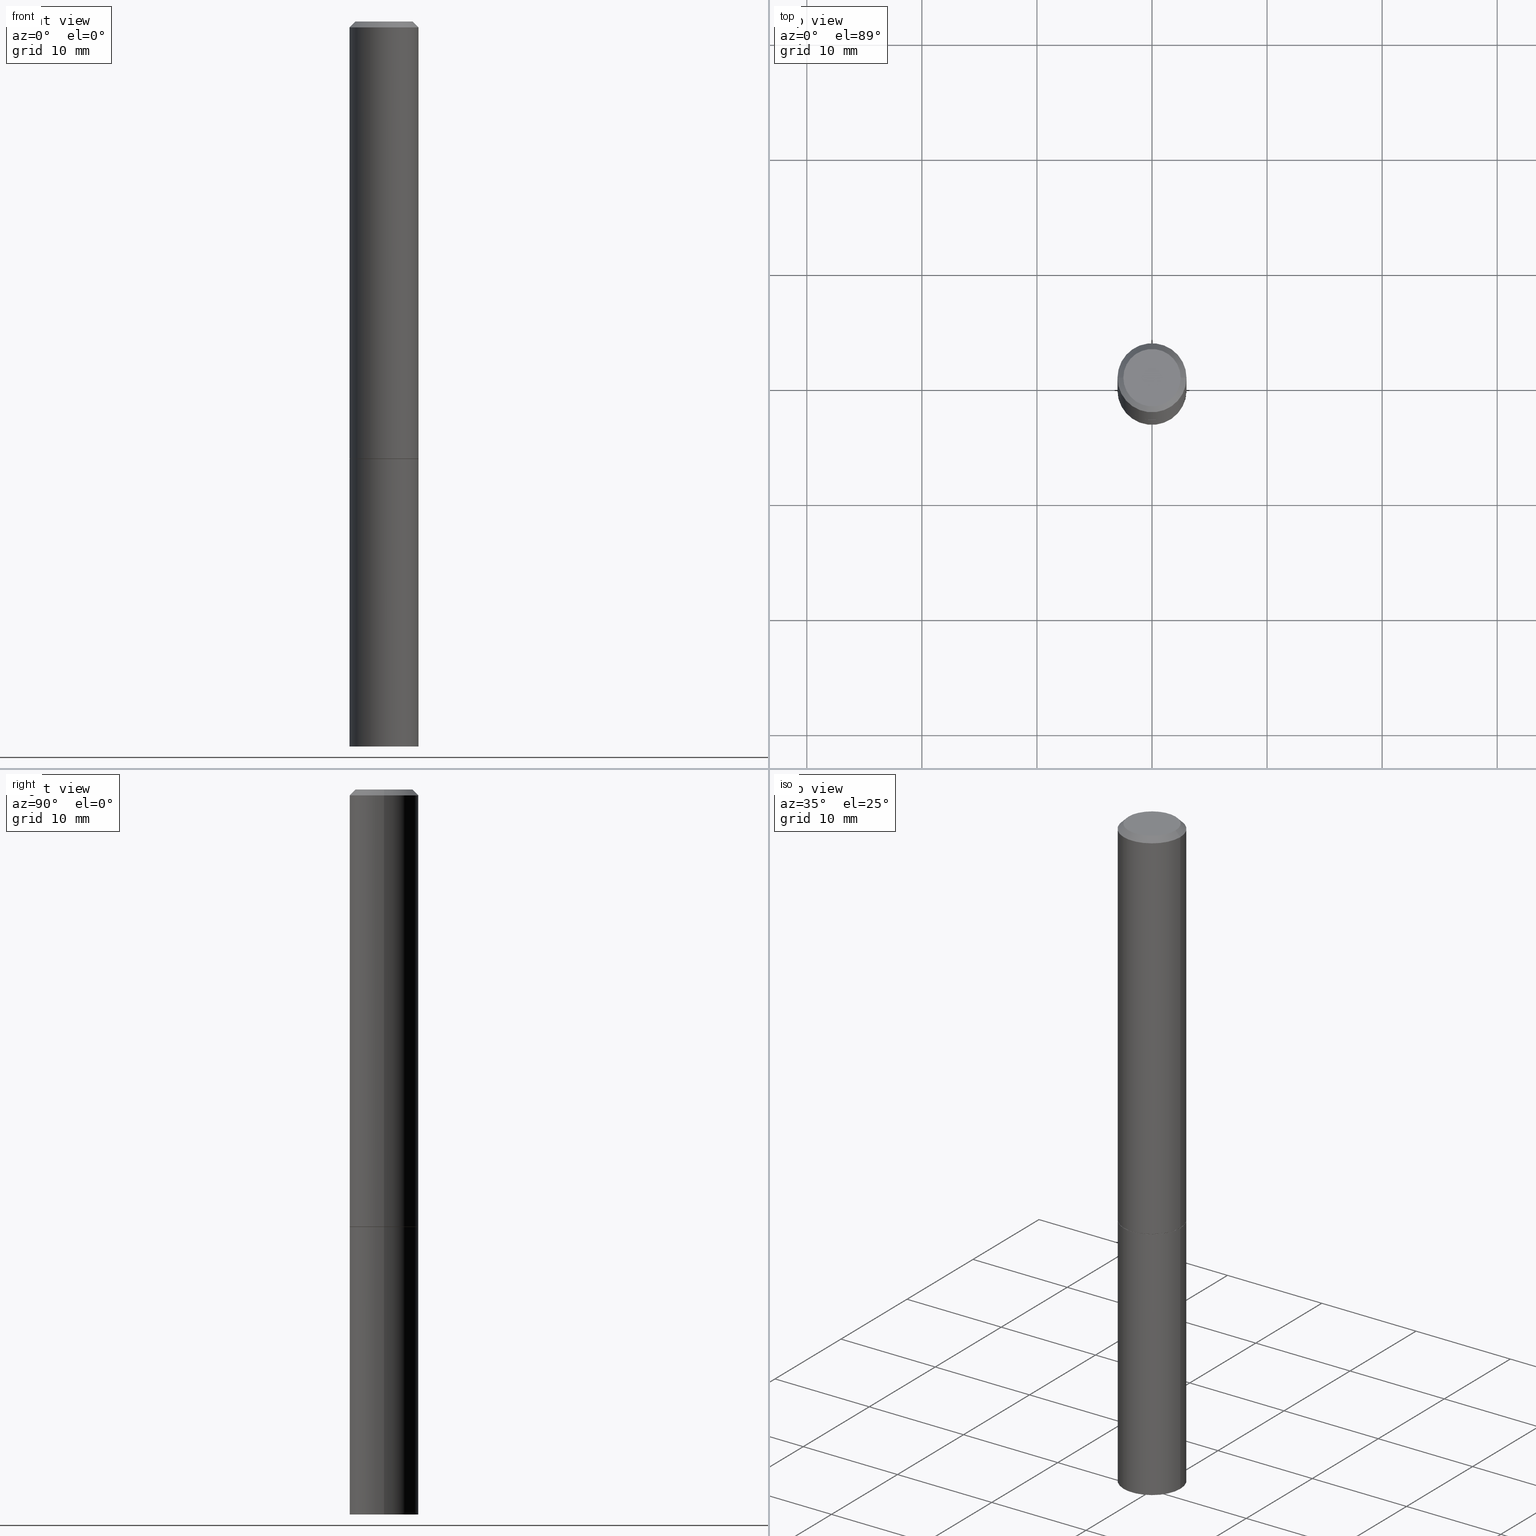
[diagram: canonical four-view strip — front | top / right | iso, engineering-drawing reading convention]
A machine part, canonical four-view strip (front | top / right | iso — engineering-drawing reading convention). The complete STEP part file that produces these views, byte-faithful:
ISO-10303-21;
HEADER;
FILE_DESCRIPTION (( 'STEP AP203' ),
    '1' );
FILE_NAME ('82967.STEP',
    '2024-02-29T19:24:01',
    ( '' ),
    ( '' ),
    'SwSTEP 2.0',
    'SolidWorks 2023',
    '' );
FILE_SCHEMA (( 'CONFIG_CONTROL_DESIGN' ));
ENDSEC;

DATA;
#1 = CALENDAR_DATE ( 2024, 29, 2 ) ;
#2 = ORIENTED_EDGE ( 'NONE', *, *, #77, .F. ) ;
#3 = FACE_OUTER_BOUND ( 'NONE', #235, .T. ) ;
#4 = CC_DESIGN_PERSON_AND_ORGANIZATION_ASSIGNMENT ( #25, #146, ( #346 ) ) ;
#5 = CALENDAR_DATE ( 2024, 29, 2 ) ;
#6 = ORIENTED_EDGE ( 'NONE', *, *, #145, .T. ) ;
#7 = ORIENTED_EDGE ( 'NONE', *, *, #317, .F. ) ;
#8 = CONICAL_SURFACE ( 'NONE', #55, 0.1170999999999999958, 0.7853981633972775267 ) ;
#9 = AXIS2_PLACEMENT_3D ( 'NONE', #68, #363, #136 ) ;
#10 = APPROVAL_PERSON_ORGANIZATION ( #80, #44, #160 ) ;
#11 = DIRECTION ( 'NONE',  ( 0.7071067811864267805, -2.468850131080992517E-15, 0.7071067811866682540 ) ) ;
#12 = ADVANCED_FACE ( 'NONE', ( #182 ), #293, .T. ) ;
#13 = FACE_OUTER_BOUND ( 'NONE', #58, .T. ) ;
#14 = EDGE_CURVE ( 'NONE', #151, #89, #218, .T. ) ;
#15 = CLOSED_SHELL ( 'NONE', ( #333, #193, #74, #171, #325, #62, #232, #253 ) ) ;
#16 = CIRCLE ( 'NONE', #330, 0.1180999999999999966 ) ;
#17 = ORIENTED_EDGE ( 'NONE', *, *, #153, .F. ) ;
#18 = COORDINATED_UNIVERSAL_TIME_OFFSET ( 5, 0, .BEHIND. ) ;
#19 = DIRECTION ( 'NONE',  ( -2.445468806185136597E-29, 3.491481338843145583E-15, 1.000000000000000000 ) ) ;
#20 = LOCAL_TIME ( 14, 24, 1.000000000000000000, #18 ) ;
#21 = CARTESIAN_POINT ( 'NONE',  ( 4.890937612370281041E-31, -6.982962677686302702E-17, -0.02000000000000003511 ) ) ;
#22 = CARTESIAN_POINT ( 'NONE',  ( -0.1180999999999999966, 8.391509709326782957E-16, -5.809262341591043784E-30 ) ) ;
#23 = ADVANCED_FACE ( 'NONE', ( #13 ), #354, .T. ) ;
#24 = VECTOR ( 'NONE', #322, 39.37007874015748143 ) ;
#25 = PERSON_AND_ORGANIZATION ( #123, #313 ) ;
#26 = ORIENTED_EDGE ( 'NONE', *, *, #183, .T. ) ;
#27 = ORIENTED_EDGE ( 'NONE', *, *, #311, .T. ) ;
#28 = CIRCLE ( 'NONE', #117, 0.1180999999999998301 ) ;
#29 = AXIS2_PLACEMENT_3D ( 'NONE', #284, #289, #236 ) ;
#30 = ORIENTED_EDGE ( 'NONE', *, *, #245, .T. ) ;
#31 = ORIENTED_EDGE ( 'NONE', *, *, #120, .F. ) ;
#32 = AXIS2_PLACEMENT_3D ( 'NONE', #132, #241, #268 ) ;
#33 = CARTESIAN_POINT ( 'NONE',  ( -0.1170999999999999958, -4.385912084986047346E-15, -1.496000000000000663 ) ) ;
#34 = CC_DESIGN_DATE_AND_TIME_ASSIGNMENT ( #225, #341, ( #118 ) ) ;
#35 = ORIENTED_EDGE ( 'NONE', *, *, #145, .F. ) ;
#36 = COORDINATED_UNIVERSAL_TIME_OFFSET ( 5, 0, .BEHIND. ) ;
#37 = FACE_OUTER_BOUND ( 'NONE', #221, .T. ) ;
#38 = CARTESIAN_POINT ( 'NONE',  ( 8.246878922348086105E-16, 0.1180999999999913369, -2.480300000000001059 ) ) ;
#39 = CONICAL_SURFACE ( 'NONE', #255, 0.1180999999999998301, 0.7853981633974472798 ) ;
#40 = CC_DESIGN_APPROVAL ( #128, ( #346 ) ) ;
#41 = MECHANICAL_CONTEXT ( 'NONE', #250, 'mechanical' ) ;
#42 = DIRECTION ( 'NONE',  ( -2.445468806185136597E-29, 3.491481338843145583E-15, 1.000000000000000000 ) ) ;
#43 =( LENGTH_UNIT ( ) NAMED_UNIT ( * ) SI_UNIT ( $, .METRE. ) );
#44 = APPROVAL ( #357, 'UNSPECIFIED' ) ;
#45 = DIRECTION ( 'NONE',  ( 2.438088387897960049E-29, -3.491481338843145188E-15, -1.000000000000000000 ) ) ;
#46 = APPLICATION_CONTEXT ( 'configuration controlled 3d designs of mechanical parts and assemblies' ) ;
#47 = VECTOR ( 'NONE', #168, 39.37007874015748143 ) ;
#48 = AXIS2_PLACEMENT_3D ( 'NONE', #308, #197, #179 ) ;
#49 = PERSON_AND_ORGANIZATION ( #123, #313 ) ;
#50 = ORIENTED_EDGE ( 'NONE', *, *, #14, .F. ) ;
#51 = EDGE_CURVE ( 'NONE', #331, #142, #60, .T. ) ;
#52 = PERSON_AND_ORGANIZATION ( #123, #313 ) ;
#53 = VERTEX_POINT ( 'NONE', #93 ) ;
#54 = DIRECTION ( 'NONE',  ( -2.445468806185136877E-29, 3.491481338843145188E-15, 1.000000000000000000 ) ) ;
#55 = AXIS2_PLACEMENT_3D ( 'NONE', #261, #19, #130 ) ;
#56 = ORIENTED_EDGE ( 'NONE', *, *, #120, .T. ) ;
#57 = CC_DESIGN_PERSON_AND_ORGANIZATION_ASSIGNMENT ( #342, #141, ( #118 ) ) ;
#58 = EDGE_LOOP ( 'NONE', ( #343, #155, #31, #349 ) ) ;
#59 = CARTESIAN_POINT ( 'NONE',  ( 6.065496279980994755E-29, -8.659921164732655335E-15, -2.480300000000000171 ) ) ;
#60 = CIRCLE ( 'NONE', #358, 0.1180999999999998301 ) ;
#61 = CARTESIAN_POINT ( 'NONE',  ( 0.000000000000000000, 0.000000000000000000, 0.000000000000000000 ) ) ;
#62 = ADVANCED_FACE ( 'NONE', ( #163 ), #8, .T. ) ;
#63 = ORIENTED_EDGE ( 'NONE', *, *, #360, .F. ) ;
#64 = ORIENTED_EDGE ( 'NONE', *, *, #305, .T. ) ;
#65 = LINE ( 'NONE', #206, #24 ) ;
#66 = DIRECTION ( 'NONE',  ( 1.000000000000000000, -6.982962677686266711E-15, 0.000000000000000000 ) ) ;
#67 = AXIS2_PLACEMENT_3D ( 'NONE', #335, #72, #189 ) ;
#68 = CARTESIAN_POINT ( 'NONE',  ( 0.000000000000000000, 0.000000000000000000, 0.000000000000000000 ) ) ;
#69 = ORIENTED_EDGE ( 'NONE', *, *, #286, .F. ) ;
#70 = ADVANCED_FACE ( 'NONE', ( #237 ), #231, .F. ) ;
#71 = DATE_AND_TIME ( #98, #20 ) ;
#72 = DIRECTION ( 'NONE',  ( -2.445468806185136597E-29, 3.491481338843145583E-15, 1.000000000000000000 ) ) ;
#73 = CARTESIAN_POINT ( 'NONE',  ( 3.658421334052965846E-29, -5.223256082909347726E-15, -1.496000000000000663 ) ) ;
#74 = ADVANCED_FACE ( 'NONE', ( #76 ), #184, .T. ) ;
#75 = DIRECTION ( 'NONE',  ( 0.000000000000000000, 0.000000000000000000, 1.000000000000000000 ) ) ;
#76 = FACE_OUTER_BOUND ( 'NONE', #201, .T. ) ;
#77 = EDGE_CURVE ( 'NONE', #53, #319, #190, .T. ) ;
#78 = ORIENTED_EDGE ( 'NONE', *, *, #366, .F. ) ;
#79 = VECTOR ( 'NONE', #11, 39.37007874015748143 ) ;
#80 = PERSON_AND_ORGANIZATION ( #123, #313 ) ;
#81 = EDGE_CURVE ( 'NONE', #205, #287, #239, .T. ) ;
#82 = FACE_OUTER_BOUND ( 'NONE', #106, .T. ) ;
#83 = AXIS2_PLACEMENT_3D ( 'NONE', #156, #124, #91 ) ;
#84 = ORIENTED_EDGE ( 'NONE', *, *, #51, .T. ) ;
#85 = DIRECTION ( 'NONE',  ( -0.7071067811864267805, 7.493145998869918709E-15, 0.7071067811866682540 ) ) ;
#86 = DIRECTION ( 'NONE',  ( -2.445468806185136877E-29, 3.491481338843145188E-15, 1.000000000000000000 ) ) ;
#87 = CC_DESIGN_DATE_AND_TIME_ASSIGNMENT ( #274, #309, ( #95 ) ) ;
#88 = DIRECTION ( 'NONE',  ( 1.000000000000000000, -6.982962677686265133E-15, 0.000000000000000000 ) ) ;
#89 = VERTEX_POINT ( 'NONE', #217 ) ;
#90 = CARTESIAN_POINT ( 'NONE',  ( -0.1170999999999999958, -4.391210539334270537E-15, -1.496000000000000663 ) ) ;
#91 = DIRECTION ( 'NONE',  ( 1.000000000000000000, -6.982962677686265922E-15, 4.876176775795935793E-29 ) ) ;
#92 = CALENDAR_DATE ( 2024, 29, 2 ) ;
#93 = CARTESIAN_POINT ( 'NONE',  ( -0.1180999999999999966, -6.102437652888322939E-15, -2.480300000000000171 ) ) ;
#94 = PERSON_AND_ORGANIZATION ( #123, #313 ) ;
#95 = PRODUCT_DEFINITION ( 'UNKNOWN', '', #346, #196 ) ;
#96 = EDGE_LOOP ( 'NONE', ( #63, #326, #180, #113 ) ) ;
#97 = VECTOR ( 'NONE', #302, 39.37007874015748143 ) ;
#98 = CALENDAR_DATE ( 2024, 29, 2 ) ;
#99 = DIRECTION ( 'NONE',  ( -1.000000000000000000, 6.982962677686266711E-15, 0.000000000000000000 ) ) ;
#100 = DIRECTION ( 'NONE',  ( 1.000000000000000000, -6.982962677686266711E-15, 4.876176775795935793E-29 ) ) ;
#101 = APPLICATION_PROTOCOL_DEFINITION ( 'international standard', 'config_control_design', 1994, #250 ) ;
#102 = LINE ( 'NONE', #303, #47 ) ;
#103 = AXIS2_PLACEMENT_3D ( 'NONE', #125, #164, #258 ) ;
#104 = CIRCLE ( 'NONE', #108, 0.1170999999999999958 ) ;
#105 = APPROVAL_STATUS ( 'not_yet_approved' ) ;
#106 = EDGE_LOOP ( 'NONE', ( #122, #209, #199, #78 ) ) ;
#107 = VECTOR ( 'NONE', #54, 39.37007874015748143 ) ;
#108 = AXIS2_PLACEMENT_3D ( 'NONE', #318, #243, #220 ) ;
#109 = FACE_OUTER_BOUND ( 'NONE', #256, .T. ) ;
#110 = ORIENTED_EDGE ( 'NONE', *, *, #298, .F. ) ;
#111 = CYLINDRICAL_SURFACE ( 'NONE', #207, 0.1180999999999999966 ) ;
#112 = PERSON_AND_ORGANIZATION ( #123, #313 ) ;
#113 = ORIENTED_EDGE ( 'NONE', *, *, #135, .F. ) ;
#114 = CARTESIAN_POINT ( 'NONE',  ( 4.890937612370281041E-31, -6.982962677686302702E-17, -0.02000000000000003511 ) ) ;
#115 = ORIENTED_EDGE ( 'NONE', *, *, #263, .F. ) ;
#116 = CIRCLE ( 'NONE', #285, 0.1180999999999999966 ) ;
#117 = AXIS2_PLACEMENT_3D ( 'NONE', #21, #170, #301 ) ;
#118 = SECURITY_CLASSIFICATION ( '', '', #365 ) ;
#119 = CARTESIAN_POINT ( 'NONE',  ( 0.1170999999999999958, -6.040961012466409185E-15, -1.496000000000000663 ) ) ;
#120 = EDGE_CURVE ( 'NONE', #306, #323, #212, .T. ) ;
#121 = FACE_OUTER_BOUND ( 'NONE', #214, .T. ) ;
#122 = ORIENTED_EDGE ( 'NONE', *, *, #263, .T. ) ;
#123 = PERSON ( 'UNSPECIFIED', 'UNSPECIFIED', 'UNSPECIFIED', ('UNSPECIFIED'), ('UNSPECIFIED'), ('UNSPECIFIED') ) ;
#124 = DIRECTION ( 'NONE',  ( -2.438088387897960049E-29, 3.491481338843145188E-15, 1.000000000000000000 ) ) ;
#125 = CARTESIAN_POINT ( 'NONE',  ( 3.655975865246779683E-29, -5.219764601570503930E-15, -1.495000000000000329 ) ) ;
#126 = DIRECTION ( 'NONE',  ( -2.445468806185136597E-29, 3.491481338843145583E-15, 1.000000000000000000 ) ) ;
#127 = CARTESIAN_POINT ( 'NONE',  ( 0.1170999999999999958, -6.040961012466409185E-15, -1.496000000000000663 ) ) ;
#128 = APPROVAL ( #105, 'UNSPECIFIED' ) ;
#129 = CARTESIAN_POINT ( 'NONE',  ( -0.09809999999999984011, 7.199434520694527237E-16, -4.912674026790424285E-30 ) ) ;
#130 = DIRECTION ( 'NONE',  ( 1.000000000000000000, -6.982962677686264344E-15, 0.000000000000000000 ) ) ;
#131 = CARTESIAN_POINT ( 'NONE',  ( -0.1180999999999999134, 8.391509709326777040E-16, -5.809262341591039580E-30 ) ) ;
#132 = CARTESIAN_POINT ( 'NONE',  ( 6.065496279980994755E-29, -8.659921164732655335E-15, -2.480300000000000171 ) ) ;
#133 = LOCAL_TIME ( 14, 24, 1.000000000000000000, #36 ) ;
#134 = CARTESIAN_POINT ( 'NONE',  ( 0.000000000000000000, 0.000000000000000000, 0.000000000000000000 ) ) ;
#135 = EDGE_CURVE ( 'NONE', #142, #331, #28, .T. ) ;
#136 = DIRECTION ( 'NONE',  ( 1.000000000000000000, -6.982962677686266711E-15, 4.876176775795935793E-29 ) ) ;
#137 =( NAMED_UNIT ( * ) PLANE_ANGLE_UNIT ( ) SI_UNIT ( $, .RADIAN. ) );
#138 = APPROVAL_DATE_TIME ( #200, #128 ) ;
#139 = COORDINATED_UNIVERSAL_TIME_OFFSET ( 5, 0, .BEHIND. ) ;
#140 = CC_DESIGN_PERSON_AND_ORGANIZATION_ASSIGNMENT ( #52, #244, ( #346 ) ) ;
#141 = PERSON_AND_ORGANIZATION_ROLE ( 'classification_officer' ) ;
#142 = VERTEX_POINT ( 'NONE', #362 ) ;
#143 = EDGE_LOOP ( 'NONE', ( #56, #26 ) ) ;
#144 = DIRECTION ( 'NONE',  ( -1.000000000000000000, 6.982962677686266711E-15, 0.000000000000000000 ) ) ;
#145 = EDGE_CURVE ( 'NONE', #205, #142, #102, .T. ) ;
#146 = PERSON_AND_ORGANIZATION_ROLE ( 'design_supplier' ) ;
#147 = DIMENSIONAL_EXPONENTS ( 1.000000000000000000, 0.000000000000000000, 0.000000000000000000, 0.000000000000000000, 0.000000000000000000, 0.000000000000000000, 0.000000000000000000 ) ;
#148 = DATE_AND_TIME ( #92, #133 ) ;
#149 = ORIENTED_EDGE ( 'NONE', *, *, #298, .T. ) ;
#150 = ADVANCED_BREP_SHAPE_REPRESENTATION ( '82967', ( #219, #338, #213 ), #174 ) ;
#151 = VERTEX_POINT ( 'NONE', #270 ) ;
#152 = DIRECTION ( 'NONE',  ( -1.000000000000000000, 6.982962677686265922E-15, -4.876176775795935793E-29 ) ) ;
#153 = EDGE_CURVE ( 'NONE', #53, #323, #271, .T. ) ;
#154 = CC_DESIGN_SECURITY_CLASSIFICATION ( #118, ( #346 ) ) ;
#155 = ORIENTED_EDGE ( 'NONE', *, *, #153, .T. ) ;
#156 = CARTESIAN_POINT ( 'NONE',  ( 3.658421334052965846E-29, -5.223256082909347726E-15, -1.496000000000000663 ) ) ;
#157 = DIRECTION ( 'NONE',  ( -1.000000000000000000, 6.982962677686265922E-15, -4.876176775795935793E-29 ) ) ;
#158 = DIRECTION ( 'NONE',  ( 2.438088387897960049E-29, -3.491481338843145188E-15, -1.000000000000000000 ) ) ;
#159 = AXIS2_PLACEMENT_3D ( 'NONE', #59, #344, #229 ) ;
#160 = APPROVAL_ROLE ( '' ) ;
#161 = EDGE_CURVE ( 'NONE', #319, #53, #329, .T. ) ;
#162 = LINE ( 'NONE', #90, #300 ) ;
#163 = FACE_OUTER_BOUND ( 'NONE', #195, .T. ) ;
#164 = DIRECTION ( 'NONE',  ( -2.445468806185136597E-29, 3.491481338843145583E-15, 1.000000000000000000 ) ) ;
#165 = LINE ( 'NONE', #131, #97 ) ;
#166 = CC_DESIGN_PERSON_AND_ORGANIZATION_ASSIGNMENT ( #112, #198, ( #95 ) ) ;
#167 = PERSON_AND_ORGANIZATION_ROLE ( 'design_owner' ) ;
#168 = DIRECTION ( 'NONE',  ( -0.7071067811865467956, 2.468850131082249172E-15, -0.7071067811865482389 ) ) ;
#169 = FACE_OUTER_BOUND ( 'NONE', #96, .T. ) ;
#170 = DIRECTION ( 'NONE',  ( -2.445468806185136597E-29, 3.491481338843145583E-15, 1.000000000000000000 ) ) ;
#171 = ADVANCED_FACE ( 'NONE', ( #3 ), #39, .T. ) ;
#172 = CC_DESIGN_APPROVAL ( #44, ( #118 ) ) ;
#173 = COORDINATED_UNIVERSAL_TIME_OFFSET ( 5, 0, .BEHIND. ) ;
#174 =( GEOMETRIC_REPRESENTATION_CONTEXT ( 3 ) GLOBAL_UNCERTAINTY_ASSIGNED_CONTEXT ( ( #314 ) ) GLOBAL_UNIT_ASSIGNED_CONTEXT ( ( #192, #137, #361 ) ) REPRESENTATION_CONTEXT ( 'NONE', 'WORKASPACE' ) );
#175 = CARTESIAN_POINT ( 'NONE',  ( 4.890937612370281041E-31, -6.982962677686302702E-17, -0.02000000000000003511 ) ) ;
#176 = ORIENTED_EDGE ( 'NONE', *, *, #161, .F. ) ;
#177 = ORIENTED_EDGE ( 'NONE', *, *, #245, .F. ) ;
#178 = LOCAL_TIME ( 14, 24, 1.000000000000000000, #139 ) ;
#179 = DIRECTION ( 'NONE',  ( 1.000000000000000000, -6.982962677686266711E-15, 4.876176775795935793E-29 ) ) ;
#180 = ORIENTED_EDGE ( 'NONE', *, *, #366, .T. ) ;
#181 = DIRECTION ( 'NONE',  ( -2.445468806185136597E-29, 3.491481338843145583E-15, 1.000000000000000000 ) ) ;
#182 = FACE_OUTER_BOUND ( 'NONE', #347, .T. ) ;
#183 = EDGE_CURVE ( 'NONE', #323, #306, #116, .T. ) ;
#184 = CONICAL_SURFACE ( 'NONE', #364, 0.1180999999999998301, 0.7853981633974472798 ) ;
#185 = CIRCLE ( 'NONE', #29, 0.1170999999999999958 ) ;
#186 = PERSON_AND_ORGANIZATION ( #123, #313 ) ;
#187 = ADVANCED_FACE ( 'NONE', ( #109 ), #111, .T. ) ;
#188 = DIRECTION ( 'NONE',  ( 1.000000000000000000, -6.982962677686264344E-15, 0.000000000000000000 ) ) ;
#189 = DIRECTION ( 'NONE',  ( 1.000000000000000000, -6.982962677686265133E-15, 0.000000000000000000 ) ) ;
#190 = CIRCLE ( 'NONE', #32, 0.1180999999999999966 ) ;
#191 = DIRECTION ( 'NONE',  ( 2.445468806185136597E-29, -3.491481338843145583E-15, -1.000000000000000000 ) ) ;
#192 =( CONVERSION_BASED_UNIT ( 'INCH', #238 ) LENGTH_UNIT ( ) NAMED_UNIT ( #147 ) );
#193 = ADVANCED_FACE ( 'NONE', ( #82 ), #315, .T. ) ;
#194 = LOCAL_TIME ( 14, 24, 1.000000000000000000, #173 ) ;
#195 = EDGE_LOOP ( 'NONE', ( #252, #30, #27, #50 ) ) ;
#196 = DESIGN_CONTEXT ( 'detailed design', #46, 'design' ) ;
#197 = DIRECTION ( 'NONE',  ( -2.445468806185136597E-29, 3.491481338843145583E-15, 1.000000000000000000 ) ) ;
#198 = PERSON_AND_ORGANIZATION_ROLE ( 'creator' ) ;
#199 = ORIENTED_EDGE ( 'NONE', *, *, #51, .F. ) ;
#200 = DATE_AND_TIME ( #281, #178 ) ;
#201 = EDGE_LOOP ( 'NONE', ( #110, #283, #84, #35 ) ) ;
#202 = SHAPE_DEFINITION_REPRESENTATION ( #216, #150 ) ;
#203 = CARTESIAN_POINT ( 'NONE',  ( 0.1180999999999999966, -6.047943975144094411E-15, -1.496000000000000441 ) ) ;
#204 = EDGE_CURVE ( 'NONE', #319, #306, #282, .T. ) ;
#205 = VERTEX_POINT ( 'NONE', #129 ) ;
#206 = CARTESIAN_POINT ( 'NONE',  ( 0.1180999999999998301, -8.800544403136797528E-16, -0.02000000000000003511 ) ) ;
#207 = AXIS2_PLACEMENT_3D ( 'NONE', #228, #345, #340 ) ;
#208 = CONICAL_SURFACE ( 'NONE', #257, 0.1170999999999999958, 0.7853981633972775267 ) ;
#209 = ORIENTED_EDGE ( 'NONE', *, *, #360, .T. ) ;
#210 = CARTESIAN_POINT ( 'NONE',  ( 4.890937612370281041E-31, -6.982962677686302702E-17, -0.02000000000000003511 ) ) ;
#211 = APPLICATION_PROTOCOL_DEFINITION ( 'international standard', 'config_control_design', 1994, #46 ) ;
#212 = CIRCLE ( 'NONE', #67, 0.1180999999999999966 ) ;
#213 = AXIS2_PLACEMENT_3D ( 'NONE', #269, #75, #304 ) ;
#214 = EDGE_LOOP ( 'NONE', ( #7, #177 ) ) ;
#215 = DIRECTION ( 'NONE',  ( -2.445468806185136877E-29, 3.491481338843145188E-15, 1.000000000000000000 ) ) ;
#216 = PRODUCT_DEFINITION_SHAPE ( 'NONE', 'NONE',  #95 ) ;
#217 = CARTESIAN_POINT ( 'NONE',  ( 0.1180999999999999966, -6.044452493805252192E-15, -1.495000000000000329 ) ) ;
#218 = CIRCLE ( 'NONE', #103, 0.1180999999999999966 ) ;
#219 = MANIFOLD_SOLID_BREP ( 'Body-Move/Copy2[1]', #272 ) ;
#220 = DIRECTION ( 'NONE',  ( 1.000000000000000000, -6.982962677686264344E-15, 0.000000000000000000 ) ) ;
#221 = EDGE_LOOP ( 'NONE', ( #351, #149 ) ) ;
#222 = DIRECTION ( 'NONE',  ( 2.445468806185136597E-29, -3.491481338843145583E-15, -1.000000000000000000 ) ) ;
#223 = APPROVAL ( #295, 'UNSPECIFIED' ) ;
#224 = APPROVAL_PERSON_ORGANIZATION ( #49, #128, #275 ) ;
#225 = DATE_AND_TIME ( #1, #233 ) ;
#226 = ORIENTED_EDGE ( 'NONE', *, *, #317, .T. ) ;
#227 = VERTEX_POINT ( 'NONE', #33 ) ;
#228 = CARTESIAN_POINT ( 'NONE',  ( 0.000000000000000000, 0.000000000000000000, 0.000000000000000000 ) ) ;
#229 = DIRECTION ( 'NONE',  ( 1.000000000000000000, -6.982962677686273021E-15, 0.000000000000000000 ) ) ;
#230 = DIRECTION ( 'NONE',  ( 1.000000000000000000, -6.982962677686266711E-15, 4.876176775795935793E-29 ) ) ;
#231 = PLANE ( 'NONE',  #312 ) ;
#232 = ADVANCED_FACE ( 'NONE', ( #121 ), #350, .F. ) ;
#233 = LOCAL_TIME ( 14, 24, 1.000000000000000000, #247 ) ;
#234 = CARTESIAN_POINT ( 'NONE',  ( 0.000000000000000000, 0.000000000000000000, 0.000000000000000000 ) ) ;
#235 = EDGE_LOOP ( 'NONE', ( #69, #249, #6, #248 ) ) ;
#236 = DIRECTION ( 'NONE',  ( 1.000000000000000000, -6.982962677686264344E-15, 0.000000000000000000 ) ) ;
#237 = FACE_OUTER_BOUND ( 'NONE', #143, .T. ) ;
#238 = LENGTH_MEASURE_WITH_UNIT ( LENGTH_MEASURE( 0.02539999999999999897 ), #43 );
#239 = CIRCLE ( 'NONE', #320, 0.09809999999999984011 ) ;
#240 = CC_DESIGN_PERSON_AND_ORGANIZATION_ASSIGNMENT ( #94, #167, ( #307 ) ) ;
#241 = DIRECTION ( 'NONE',  ( -2.445468806185136597E-29, 3.491481338843145583E-15, 1.000000000000000000 ) ) ;
#242 = CYLINDRICAL_SURFACE ( 'NONE', #9, 0.1180999999999999134 ) ;
#243 = DIRECTION ( 'NONE',  ( -2.445468806185136597E-29, 3.491481338843145583E-15, 1.000000000000000000 ) ) ;
#244 = PERSON_AND_ORGANIZATION_ROLE ( 'creator' ) ;
#245 = EDGE_CURVE ( 'NONE', #227, #290, #185, .T. ) ;
#246 = CARTESIAN_POINT ( 'NONE',  ( 3.658421334052965286E-29, -5.223256082909346937E-15, -1.496000000000000441 ) ) ;
#247 = COORDINATED_UNIVERSAL_TIME_OFFSET ( 5, 0, .BEHIND. ) ;
#248 = ORIENTED_EDGE ( 'NONE', *, *, #135, .T. ) ;
#249 = ORIENTED_EDGE ( 'NONE', *, *, #81, .F. ) ;
#250 = APPLICATION_CONTEXT ( 'configuration controlled 3d designs of mechanical parts and assemblies' ) ;
#251 = DIRECTION ( 'NONE',  ( -2.445468806185136597E-29, 3.491481338843145583E-15, 1.000000000000000000 ) ) ;
#252 = ORIENTED_EDGE ( 'NONE', *, *, #305, .F. ) ;
#253 = ADVANCED_FACE ( 'NONE', ( #37 ), #324, .F. ) ;
#254 = CARTESIAN_POINT ( 'NONE',  ( 0.1180999999999999966, -8.246878922347480654E-16, 5.758764772215000440E-30 ) ) ;
#255 = AXIS2_PLACEMENT_3D ( 'NONE', #114, #222, #144 ) ;
#256 = EDGE_LOOP ( 'NONE', ( #17, #276, #310, #277 ) ) ;
#257 = AXIS2_PLACEMENT_3D ( 'NONE', #73, #265, #188 ) ;
#258 = DIRECTION ( 'NONE',  ( 1.000000000000000000, -6.982962677686265133E-15, 0.000000000000000000 ) ) ;
#259 = CARTESIAN_POINT ( 'NONE',  ( 0.09809999999999984011, -7.765346469475328709E-16, 5.110261127650076916E-30 ) ) ;
#260 = DIRECTION ( 'NONE',  ( -2.445468806185136597E-29, 3.491481338843145583E-15, 1.000000000000000000 ) ) ;
#261 = CARTESIAN_POINT ( 'NONE',  ( 3.658421334052965846E-29, -5.223256082909347726E-15, -1.496000000000000663 ) ) ;
#262 = APPROVAL_ROLE ( '' ) ;
#263 = EDGE_CURVE ( 'NONE', #89, #151, #16, .T. ) ;
#264 = DIRECTION ( 'NONE',  ( -2.445468806185136597E-29, 3.491481338843145583E-15, 1.000000000000000000 ) ) ;
#265 = DIRECTION ( 'NONE',  ( -2.445468806185136597E-29, 3.491481338843145583E-15, 1.000000000000000000 ) ) ;
#266 = VECTOR ( 'NONE', #86, 39.37007874015748143 ) ;
#267 = CARTESIAN_POINT ( 'NONE',  ( 0.1180999999999999966, -9.484609056967403598E-15, -2.480300000000000171 ) ) ;
#268 = DIRECTION ( 'NONE',  ( 1.000000000000000000, -6.982962677686273021E-15, 0.000000000000000000 ) ) ;
#269 = CARTESIAN_POINT ( 'NONE',  ( 0.000000000000000000, 0.000000000000000000, 0.000000000000000000 ) ) ;
#270 = CARTESIAN_POINT ( 'NONE',  ( -0.1180999999999999966, -1.805646143241003445E-15, -1.495000000000000329 ) ) ;
#271 = LINE ( 'NONE', #22, #107 ) ;
#272 = CLOSED_SHELL ( 'NONE', ( #23, #12, #70, #187 ) ) ;
#273 = APPROVAL_PERSON_ORGANIZATION ( #186, #223, #262 ) ;
#274 = DATE_AND_TIME ( #5, #194 ) ;
#275 = APPROVAL_ROLE ( '' ) ;
#276 = ORIENTED_EDGE ( 'NONE', *, *, #77, .T. ) ;
#277 = ORIENTED_EDGE ( 'NONE', *, *, #183, .F. ) ;
#278 = AXIS2_PLACEMENT_3D ( 'NONE', #38, #288, #157 ) ;
#279 = AXIS2_PLACEMENT_3D ( 'NONE', #291, #158, #152 ) ;
#280 = EDGE_LOOP ( 'NONE', ( #226, #64, #115, #339 ) ) ;
#281 = CALENDAR_DATE ( 2024, 29, 2 ) ;
#282 = LINE ( 'NONE', #254, #266 ) ;
#283 = ORIENTED_EDGE ( 'NONE', *, *, #286, .T. ) ;
#284 = CARTESIAN_POINT ( 'NONE',  ( 3.658421334052965846E-29, -5.223256082909347726E-15, -1.496000000000000663 ) ) ;
#285 = AXIS2_PLACEMENT_3D ( 'NONE', #246, #251, #348 ) ;
#286 = EDGE_CURVE ( 'NONE', #287, #331, #65, .T. ) ;
#287 = VERTEX_POINT ( 'NONE', #259 ) ;
#288 = DIRECTION ( 'NONE',  ( 2.438088387897960049E-29, -3.491481338843145188E-15, -1.000000000000000000 ) ) ;
#289 = DIRECTION ( 'NONE',  ( -2.445468806185136597E-29, 3.491481338843145583E-15, 1.000000000000000000 ) ) ;
#290 = VERTEX_POINT ( 'NONE', #127 ) ;
#291 = CARTESIAN_POINT ( 'NONE',  ( 6.850286386810215676E-16, 0.09809999999999984011, -3.425143193405120164E-16 ) ) ;
#292 = CIRCLE ( 'NONE', #337, 0.09809999999999984011 ) ;
#293 = PLANE ( 'NONE',  #278 ) ;
#294 = PRODUCT_RELATED_PRODUCT_CATEGORY ( 'detail', '', ( #307 ) ) ;
#295 = APPROVAL_STATUS ( 'not_yet_approved' ) ;
#296 = DIRECTION ( 'NONE',  ( -1.000000000000000000, 6.982962677686265922E-15, -4.876176775795935793E-29 ) ) ;
#297 = CARTESIAN_POINT ( 'NONE',  ( 0.1180999999999999134, -8.246878922347474737E-16, 5.758764772214996237E-30 ) ) ;
#298 = EDGE_CURVE ( 'NONE', #287, #205, #292, .T. ) ;
#299 = AXIS2_PLACEMENT_3D ( 'NONE', #234, #260, #353 ) ;
#300 = VECTOR ( 'NONE', #85, 39.37007874015748143 ) ;
#301 = DIRECTION ( 'NONE',  ( 1.000000000000000000, -6.982962677686266711E-15, 0.000000000000000000 ) ) ;
#302 = DIRECTION ( 'NONE',  ( -2.445468806185136877E-29, 3.491481338843145188E-15, 1.000000000000000000 ) ) ;
#303 = CARTESIAN_POINT ( 'NONE',  ( -0.1180999999999998301, 7.548582654578837811E-16, -0.02000000000000003511 ) ) ;
#304 = DIRECTION ( 'NONE',  ( 1.000000000000000000, 0.000000000000000000, 0.000000000000000000 ) ) ;
#305 = EDGE_CURVE ( 'NONE', #227, #151, #162, .T. ) ;
#306 = VERTEX_POINT ( 'NONE', #203 ) ;
#307 = PRODUCT ( '82967', '82967', '', ( #41 ) ) ;
#308 = CARTESIAN_POINT ( 'NONE',  ( 0.000000000000000000, 0.000000000000000000, 0.000000000000000000 ) ) ;
#309 = DATE_TIME_ROLE ( 'creation_date' ) ;
#310 = ORIENTED_EDGE ( 'NONE', *, *, #204, .T. ) ;
#311 = EDGE_CURVE ( 'NONE', #290, #89, #316, .T. ) ;
#312 = AXIS2_PLACEMENT_3D ( 'NONE', #356, #45, #296 ) ;
#313 = ORGANIZATION ( 'UNSPECIFIED', 'UNSPECIFIED', '' ) ;
#314 = UNCERTAINTY_MEASURE_WITH_UNIT (LENGTH_MEASURE( 1.000000000000000082E-05 ), #192, 'distance_accuracy_value', 'NONE');
#315 = CYLINDRICAL_SURFACE ( 'NONE', #48, 0.1180999999999999134 ) ;
#316 = LINE ( 'NONE', #119, #79 ) ;
#317 = EDGE_CURVE ( 'NONE', #290, #227, #104, .T. ) ;
#318 = CARTESIAN_POINT ( 'NONE',  ( 3.658421334052965846E-29, -5.223256082909347726E-15, -1.496000000000000663 ) ) ;
#319 = VERTEX_POINT ( 'NONE', #267 ) ;
#320 = AXIS2_PLACEMENT_3D ( 'NONE', #134, #42, #100 ) ;
#321 = VECTOR ( 'NONE', #215, 39.37007874015748143 ) ;
#322 = DIRECTION ( 'NONE',  ( 0.7071067811865467956, -7.319954787623254468E-15, -0.7071067811865482389 ) ) ;
#323 = VERTEX_POINT ( 'NONE', #355 ) ;
#324 = PLANE ( 'NONE',  #279 ) ;
#325 = ADVANCED_FACE ( 'NONE', ( #169 ), #242, .T. ) ;
#326 = ORIENTED_EDGE ( 'NONE', *, *, #14, .T. ) ;
#327 = APPROVAL_DATE_TIME ( #148, #44 ) ;
#328 = FACE_OUTER_BOUND ( 'NONE', #280, .T. ) ;
#329 = CIRCLE ( 'NONE', #159, 0.1180999999999999966 ) ;
#330 = AXIS2_PLACEMENT_3D ( 'NONE', #352, #126, #88 ) ;
#331 = VERTEX_POINT ( 'NONE', #336 ) ;
#332 = APPROVAL_DATE_TIME ( #71, #223 ) ;
#333 = ADVANCED_FACE ( 'NONE', ( #328 ), #208, .T. ) ;
#334 = LINE ( 'NONE', #297, #321 ) ;
#335 = CARTESIAN_POINT ( 'NONE',  ( 3.658421334052965286E-29, -5.223256082909346937E-15, -1.496000000000000441 ) ) ;
#336 = CARTESIAN_POINT ( 'NONE',  ( 0.1180999999999998301, -8.800544403136797528E-16, -0.02000000000000003511 ) ) ;
#337 = AXIS2_PLACEMENT_3D ( 'NONE', #61, #181, #230 ) ;
#338 = MANIFOLD_SOLID_BREP ( 'Body-Move/Copy2[2]', #15 ) ;
#339 = ORIENTED_EDGE ( 'NONE', *, *, #311, .F. ) ;
#340 = DIRECTION ( 'NONE',  ( 1.000000000000000000, -6.982962677686266711E-15, 4.876176775795936353E-29 ) ) ;
#341 = DATE_TIME_ROLE ( 'classification_date' ) ;
#342 = PERSON_AND_ORGANIZATION ( #123, #313 ) ;
#343 = ORIENTED_EDGE ( 'NONE', *, *, #161, .T. ) ;
#344 = DIRECTION ( 'NONE',  ( -2.445468806185136597E-29, 3.491481338843145583E-15, 1.000000000000000000 ) ) ;
#345 = DIRECTION ( 'NONE',  ( -2.445468806185136597E-29, 3.491481338843145583E-15, 1.000000000000000000 ) ) ;
#346 = PRODUCT_DEFINITION_FORMATION_WITH_SPECIFIED_SOURCE ( 'ANY', '', #307, .NOT_KNOWN. ) ;
#347 = EDGE_LOOP ( 'NONE', ( #176, #2 ) ) ;
#348 = DIRECTION ( 'NONE',  ( 1.000000000000000000, -6.982962677686265133E-15, 0.000000000000000000 ) ) ;
#349 = ORIENTED_EDGE ( 'NONE', *, *, #204, .F. ) ;
#350 = PLANE ( 'NONE',  #83 ) ;
#351 = ORIENTED_EDGE ( 'NONE', *, *, #81, .T. ) ;
#352 = CARTESIAN_POINT ( 'NONE',  ( 3.655975865246779683E-29, -5.219764601570503930E-15, -1.495000000000000329 ) ) ;
#353 = DIRECTION ( 'NONE',  ( 1.000000000000000000, -6.982962677686266711E-15, 4.876176775795936353E-29 ) ) ;
#354 = CYLINDRICAL_SURFACE ( 'NONE', #299, 0.1180999999999999966 ) ;
#355 = CARTESIAN_POINT ( 'NONE',  ( -0.1180999999999999966, -6.102437652888322939E-15, -1.496000000000000441 ) ) ;
#356 = CARTESIAN_POINT ( 'NONE',  ( 8.246878922347846488E-16, 0.1180999999999947786, -1.496000000000000885 ) ) ;
#357 = APPROVAL_STATUS ( 'not_yet_approved' ) ;
#358 = AXIS2_PLACEMENT_3D ( 'NONE', #210, #264, #66 ) ;
#359 = CC_DESIGN_APPROVAL ( #223, ( #95 ) ) ;
#360 = EDGE_CURVE ( 'NONE', #151, #142, #165, .T. ) ;
#361 =( NAMED_UNIT ( * ) SI_UNIT ( $, .STERADIAN. ) SOLID_ANGLE_UNIT ( ) );
#362 = CARTESIAN_POINT ( 'NONE',  ( -0.1180999999999998301, 7.548582654578837811E-16, -0.02000000000000003511 ) ) ;
#363 = DIRECTION ( 'NONE',  ( -2.445468806185136597E-29, 3.491481338843145583E-15, 1.000000000000000000 ) ) ;
#364 = AXIS2_PLACEMENT_3D ( 'NONE', #175, #191, #99 ) ;
#365 = SECURITY_CLASSIFICATION_LEVEL ( 'unclassified' ) ;
#366 = EDGE_CURVE ( 'NONE', #89, #331, #334, .T. ) ;
ENDSEC;
END-ISO-10303-21;
